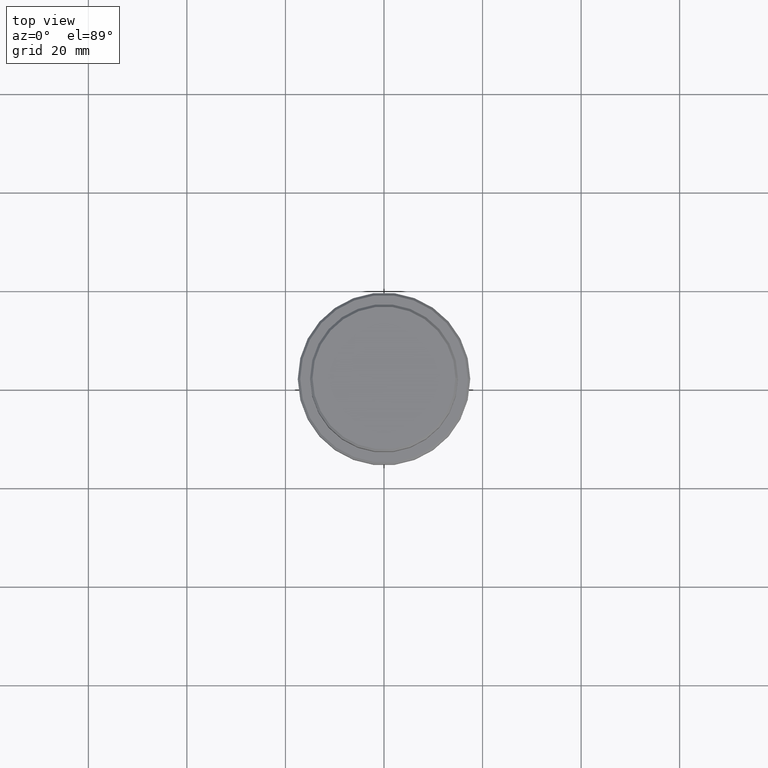
[diagram: clean part render]
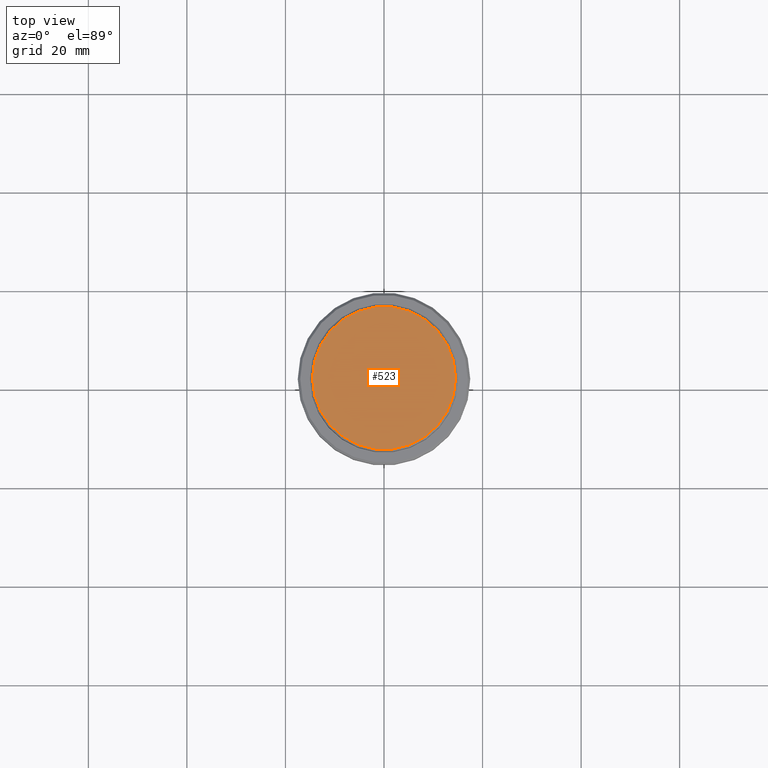
[diagram: same view with one face highlighted and labeled with its STEP entity id]
A machine part, top view. The second image highlights one B-rep face of the part: STEP entity #523.
In plain terms, the highlighted planar face has unit normal (0, -0, 1).
Its self-contained STEP definition (entity closure, byte-faithful):
#3 = EDGE_CURVE ( 'NONE', #116, #697, #653, .T. ) ;
#92 = DIRECTION ( 'NONE',  ( -0.000000000000000000, -0.000000000000000000, 1.000000000000000000 ) ) ;
#103 = AXIS2_PLACEMENT_3D ( 'NONE', #1153, #1025, #616 ) ;
#116 = VERTEX_POINT ( 'NONE', #246 ) ;
#205 = EDGE_CURVE ( 'NONE', #697, #116, #921, .T. ) ;
#246 = CARTESIAN_POINT ( 'NONE',  ( 14.49999999999999645, 1.806354028742345802E-15, 0.000000000000000000 ) ) ;
#263 = DIRECTION ( 'NONE',  ( 1.000000000000000000, 0.000000000000000000, 0.000000000000000000 ) ) ;
#287 = ORIENTED_EDGE ( 'NONE', *, *, #205, .T. ) ;
#323 = DIRECTION ( 'NONE',  ( 1.000000000000000000, 0.000000000000000000, 0.000000000000000000 ) ) ;
#432 = AXIS2_PLACEMENT_3D ( 'NONE', #1087, #92, #323 ) ;
#523 = ADVANCED_FACE ( 'NONE', ( #1202 ), #1351, .T. ) ;
#595 = CARTESIAN_POINT ( 'NONE',  ( 0.000000000000000000, 0.000000000000000000, 0.000000000000000000 ) ) ;
#616 = DIRECTION ( 'NONE',  ( 1.000000000000000000, 0.000000000000000000, 0.000000000000000000 ) ) ;
#644 = CARTESIAN_POINT ( 'NONE',  ( -14.49999999999999645, 0.000000000000000000, 0.000000000000000000 ) ) ;
#653 = CIRCLE ( 'NONE', #432, 14.49999999999999645 ) ;
#697 = VERTEX_POINT ( 'NONE', #644 ) ;
#836 = DIRECTION ( 'NONE',  ( 0.000000000000000000, -0.000000000000000000, 1.000000000000000000 ) ) ;
#921 = CIRCLE ( 'NONE', #103, 14.49999999999999645 ) ;
#1025 = DIRECTION ( 'NONE',  ( -0.000000000000000000, -0.000000000000000000, 1.000000000000000000 ) ) ;
#1043 = EDGE_LOOP ( 'NONE', ( #287, #1307 ) ) ;
#1087 = CARTESIAN_POINT ( 'NONE',  ( 0.000000000000000000, 0.000000000000000000, 0.000000000000000000 ) ) ;
#1153 = CARTESIAN_POINT ( 'NONE',  ( 0.000000000000000000, 0.000000000000000000, 0.000000000000000000 ) ) ;
#1202 = FACE_OUTER_BOUND ( 'NONE', #1043, .T. ) ;
#1307 = ORIENTED_EDGE ( 'NONE', *, *, #3, .T. ) ;
#1351 = PLANE ( 'NONE',  #1367 ) ;
#1367 = AXIS2_PLACEMENT_3D ( 'NONE', #595, #836, #263 ) ;